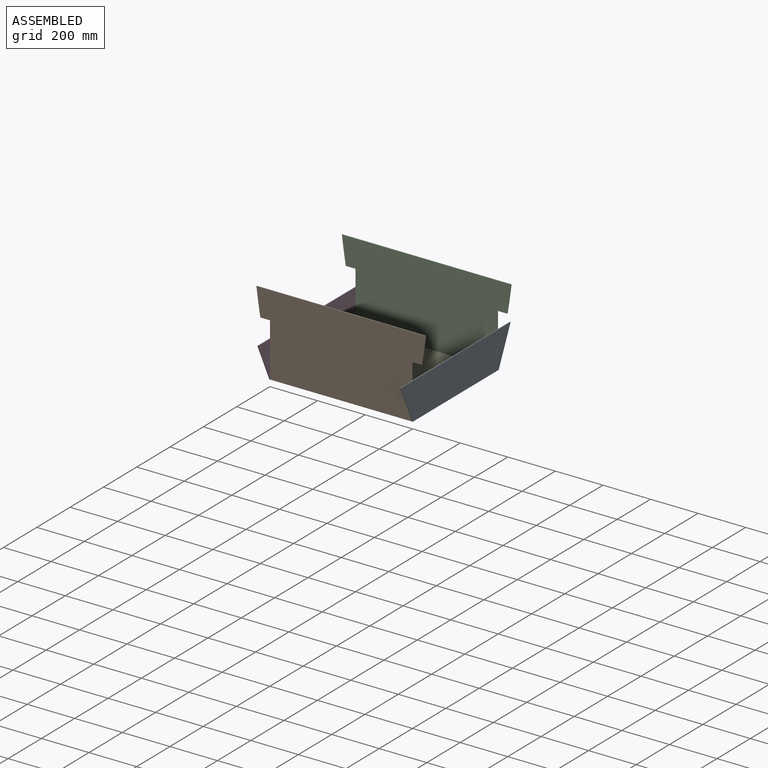
[diagram: assembled view]
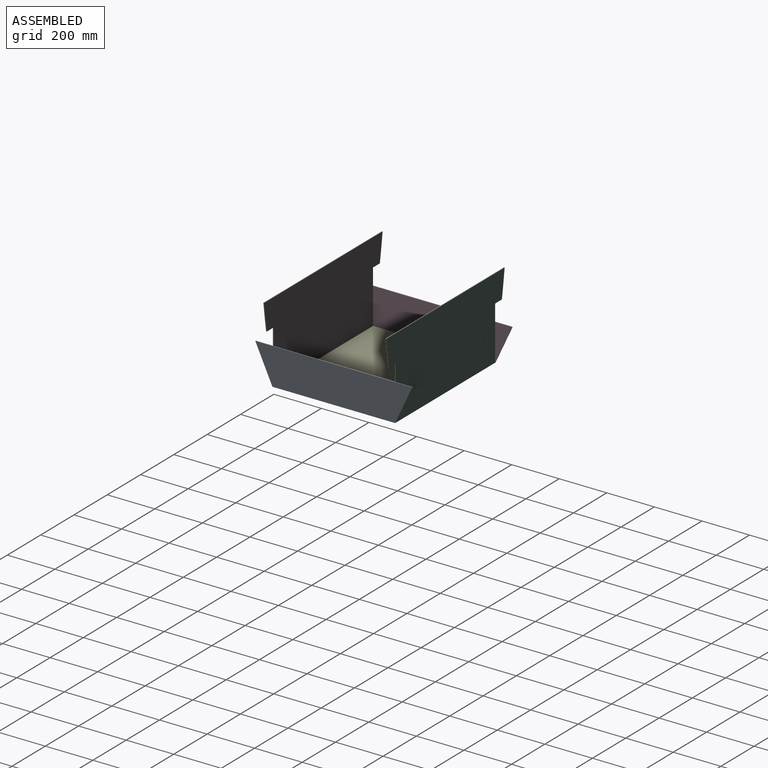
[diagram: assembled view, second angle]
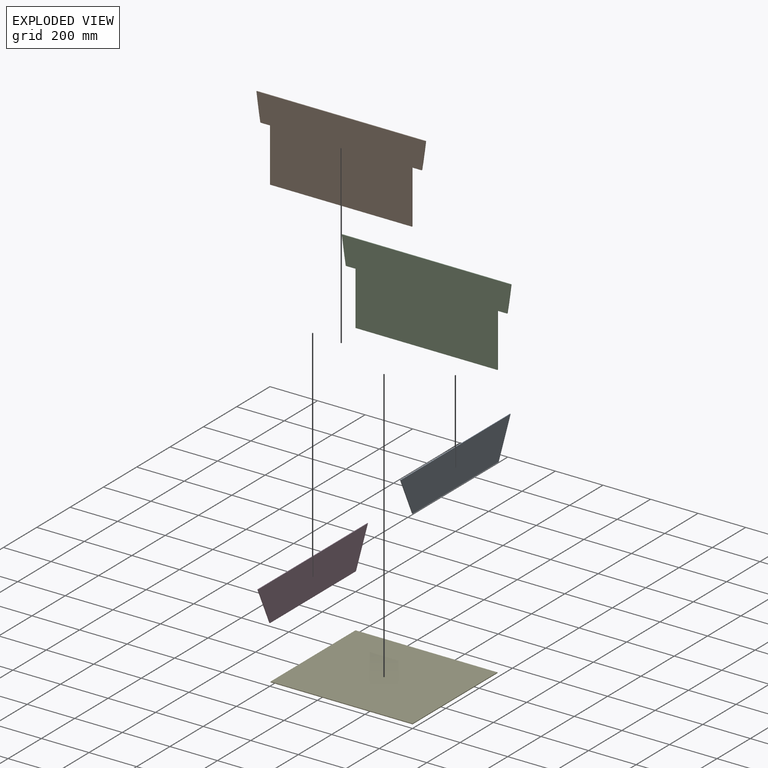
[diagram: exploded view]
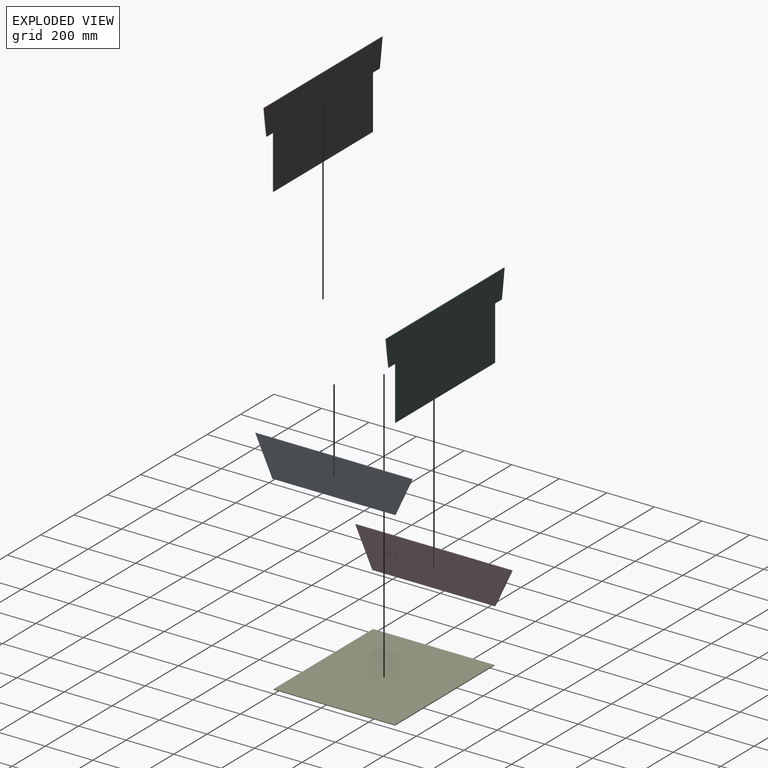
[diagram: exploded view, second angle]
ASSEMBLY  parts=5 mates=8
PART A: 6 faces, bbox 3x660x155 mm
  f0: plane 660x3mm, normal (0,0,1), area 1980mm2, adj f1,f3,f4,f5
  f1: plane 155x72mm, normal (0,0.91,-0.42), area 512.7mm2, adj f0,f2,f4,f5
  f2: plane 516x3mm, normal (0,0,-1), area 1548mm2, adj f1,f3,f4,f5
  f3: plane 155x72mm, normal (0,-0.91,-0.42), area 512.7mm2, adj f0,f2,f4,f5
  f4: plane 660x155mm, normal (-1,0,0), area 91140mm2, adj f0,f1,f2,f3
  f5: plane 660x155mm, normal (1,0,0), area 91140mm2, adj f0,f1,f2,f3
PART B: 10 faces, bbox 711.5x3x340 mm
  f0: plane 225x3mm, normal (1,0,0), area 675mm2, adj f1,f7,f8,f9
  f1: plane 40.77x3mm, normal (0,0,-1), area 122.3mm2, adj f0,f2,f8,f9
  f2: cylinder r=2903.11mm len=115mm, axis (0,-1,0), area 348.6mm2, adj f1,f3,f8,f9
  f3: plane 711.45x3mm, normal (0,0,1), area 2134.4mm2, adj f2,f4,f8,f9
  f4: cylinder r=2903.11mm len=115mm, axis (0,-1,0), area 348.6mm2, adj f3,f5,f8,f9
  f5: plane 40.77x3mm, normal (0,0,-1), area 122.3mm2, adj f4,f6,f8,f9
  f6: plane 225x3mm, normal (-1,0,0), area 675mm2, adj f5,f7,f8,f9
  f7: plane 596.9x3mm, normal (0,0,-1), area 1790.7mm2, adj f0,f6,f8,f9
  f8: plane 711.45x340mm, normal (0,-1,0), area 214311.1mm2, adj f0,f1,f2,f3,f4,f5,f6,f7
  f9: plane 711.45x340mm, normal (0,1,0), area 214311.1mm2, adj f0,f1,f2,f3,f4,f5,f6,f7
PART C: same geometry as B
PART D: same geometry as A
PART E: 6 faces, bbox 596.9x510x3 mm
  f0: plane 510x3mm, normal (1,0,0), area 1530mm2, adj f1,f3,f4,f5
  f1: plane 596.9x3mm, normal (0,-1,0), area 1790.7mm2, adj f0,f2,f4,f5
  f2: plane 510x3mm, normal (-1,0,0), area 1530mm2, adj f1,f3,f4,f5
  f3: plane 596.9x3mm, normal (0,1,0), area 1790.7mm2, adj f0,f2,f4,f5
  f4: plane 596.9x510mm, normal (0,0,-1), area 304419mm2, adj f0,f1,f2,f3
  f5: plane 596.9x510mm, normal (0,0,1), area 304419mm2, adj f0,f1,f2,f3
PLACE A t=(0,-1040.31,155)mm
PLACE B t=(2951.71,-3,225)mm
PLACE C t=(2951.71,510,225)mm
PLACE D t=(-599.9,-1040.31,155)mm
PLACE E t=(5108.9,0,0)mm
MATE fastened C.f7 <-> E.f4  axis (0,0,1) through (0,510,0)mm
MATE fastened D.f2 <-> B.f7  axis (0,0,1) through (-596.9,-3,0)mm
MATE fastened A.f2 <-> C.f7  axis (0,0,1) through (0,513,0)mm
MATE fastened D.f2 <-> C.f7  axis (0,0,1) through (-596.9,513,0)mm
MATE fastened A.f2 <-> B.f7  axis (0,0,1) through (0,-3,0)mm
MATE fastened C.f7 <-> E.f4  axis (0,0,1) through (-596.9,510,0)mm
MATE fastened B.f7 <-> E.f4  axis (0,0,1) through (-596.9,0,0)mm
MATE fastened E.f4 <-> B.f7  axis (0,0,1) through (0,0,0)mm
